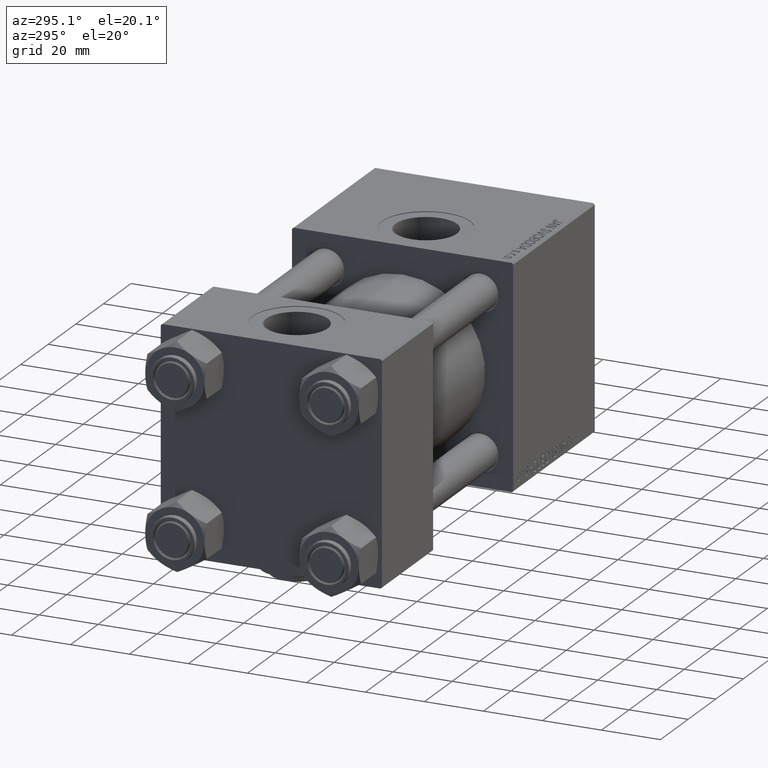
[diagram: clean part render]
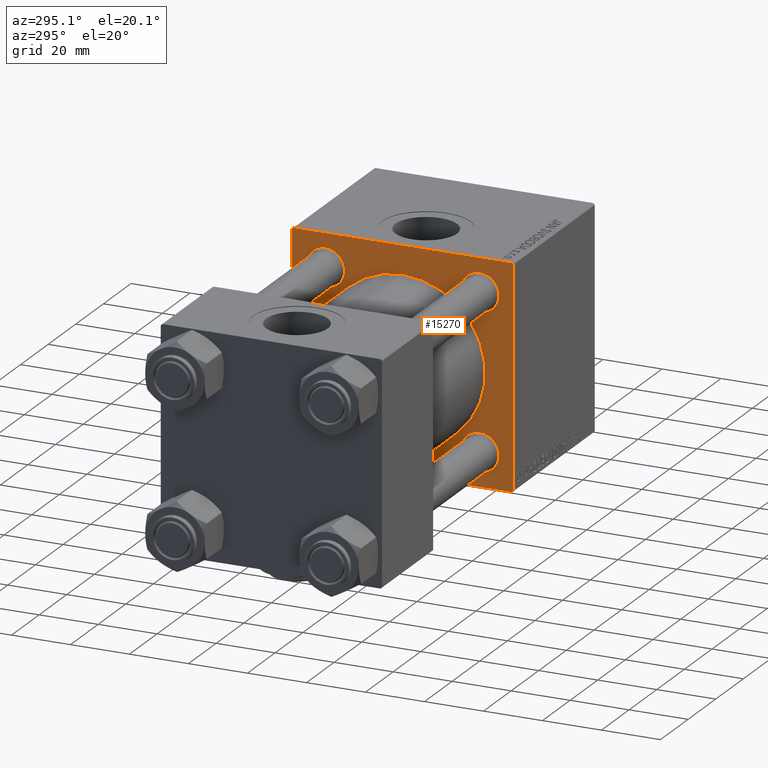
[diagram: same view with one face highlighted and labeled with its STEP entity id]
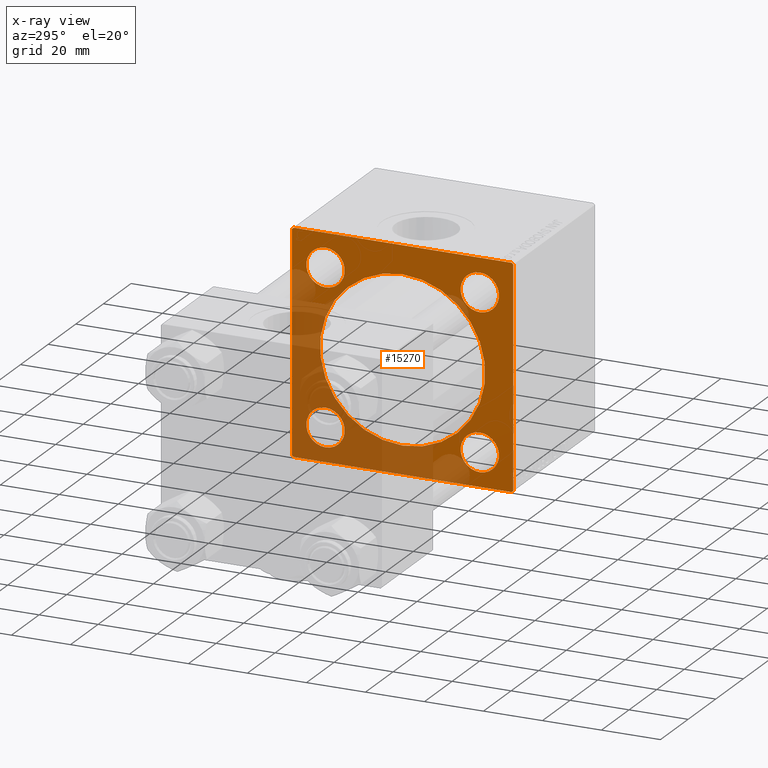
[diagram: x-ray of the same camera — body ghosted, the highlighted face saturated]
A machine part, auxiliary view. The second image highlights one B-rep face of the part: STEP entity #15270.
The next image is the same camera in x-ray: the body ghosted, the highlighted face saturated — about 42% of this face is hidden behind the body in this view.
In plain terms, the highlighted planar face has unit normal (-1, 0, 0).
Its self-contained STEP definition (entity closure, byte-faithful):
#158 = ORIENTED_EDGE ( 'NONE', *, *, #1476, .T. ) ;
#955 = EDGE_LOOP ( 'NONE', ( #39947, #24723 ) ) ;
#993 = EDGE_CURVE ( 'NONE', #10819, #49807, #37631, .T. ) ;
#1080 = ORIENTED_EDGE ( 'NONE', *, *, #26488, .T. ) ;
#1476 = EDGE_CURVE ( 'NONE', #27833, #14396, #23442, .T. ) ;
#1899 = CARTESIAN_POINT ( 'NONE',  ( 95.00000000000000000, 37.50000000000000000, 37.49999999999999289 ) ) ;
#1923 = EDGE_LOOP ( 'NONE', ( #1080, #46594 ) ) ;
#2020 = CARTESIAN_POINT ( 'NONE',  ( 95.00000000000000000, -37.50000000000000000, 36.99999999999995026 ) ) ;
#2520 = CARTESIAN_POINT ( 'NONE',  ( 95.00000000000000000, 37.50000000000000000, 36.99999999999999289 ) ) ;
#3603 = DIRECTION ( 'NONE',  ( 0.000000000000000000, 0.000000000000000000, 1.000000000000000000 ) ) ;
#3615 = CARTESIAN_POINT ( 'NONE',  ( 95.00000000000000000, -2.602085213965210642E-15, 0.000000000000000000 ) ) ;
#3672 = DIRECTION ( 'NONE',  ( -1.000000000000000000, -0.000000000000000000, 0.000000000000000000 ) ) ;
#3753 = DIRECTION ( 'NONE',  ( 0.000000000000000000, 0.000000000000000000, 1.000000000000000000 ) ) ;
#3996 = DIRECTION ( 'NONE',  ( 0.000000000000000000, 0.000000000000000000, 1.000000000000000000 ) ) ;
#4202 = CARTESIAN_POINT ( 'NONE',  ( 95.00000000000000000, -26.14999999999999147, -26.15000000000000924 ) ) ;
#4747 = CARTESIAN_POINT ( 'NONE',  ( 95.00000000000000000, -37.24999999999896261, -37.25000000000103029 ) ) ;
#4999 = CARTESIAN_POINT ( 'NONE',  ( 95.00000000000000000, -37.50000000000000711, -37.00000000000000711 ) ) ;
#5108 = CARTESIAN_POINT ( 'NONE',  ( 95.00000000000000000, 26.14999999999999858, -19.64999999999998792 ) ) ;
#5598 = ORIENTED_EDGE ( 'NONE', *, *, #41177, .T. ) ;
#5779 = AXIS2_PLACEMENT_3D ( 'NONE', #12547, #23901, #40000 ) ;
#6357 = CARTESIAN_POINT ( 'NONE',  ( 95.00000000000000000, 37.25000000000000000, 37.25000000000000000 ) ) ;
#6406 = CARTESIAN_POINT ( 'NONE',  ( 95.00000000000000000, 26.14999999999999858, 19.64999999999999147 ) ) ;
#6564 = CIRCLE ( 'NONE', #41185, 6.500000000000015987 ) ;
#6979 = VERTEX_POINT ( 'NONE', #5108 ) ;
#7645 = EDGE_LOOP ( 'NONE', ( #158, #47199, #16090, #38545, #22020, #35501, #21734, #40513 ) ) ;
#7699 = DIRECTION ( 'NONE',  ( 1.000000000000000000, 0.000000000000000000, 0.000000000000000000 ) ) ;
#8036 = EDGE_CURVE ( 'NONE', #14396, #13953, #52023, .T. ) ;
#8110 = CARTESIAN_POINT ( 'NONE',  ( 95.00000000000000000, -26.14999999999999147, 19.64999999999999147 ) ) ;
#9296 = AXIS2_PLACEMENT_3D ( 'NONE', #3615, #24220, #19728 ) ;
#9464 = LINE ( 'NONE', #45385, #45126 ) ;
#9507 = EDGE_CURVE ( 'NONE', #49807, #10819, #6564, .T. ) ;
#9729 = CARTESIAN_POINT ( 'NONE',  ( 95.00000000000000000, -36.99999999999997158, 37.49999999999997868 ) ) ;
#9863 = CARTESIAN_POINT ( 'NONE',  ( 95.00000000000000000, -26.14999999999999147, 32.65000000000003411 ) ) ;
#10081 = LINE ( 'NONE', #1899, #12127 ) ;
#10105 = EDGE_LOOP ( 'NONE', ( #5598, #37010 ) ) ;
#10819 = VERTEX_POINT ( 'NONE', #9863 ) ;
#10870 = DIRECTION ( 'NONE',  ( 1.000000000000000000, 0.000000000000000000, -0.000000000000000000 ) ) ;
#11005 = VERTEX_POINT ( 'NONE', #6406 ) ;
#11089 = EDGE_CURVE ( 'NONE', #34483, #32705, #52219, .T. ) ;
#11902 = CIRCLE ( 'NONE', #48185, 6.500000000000008882 ) ;
#12127 = VECTOR ( 'NONE', #34112, 1000.000000000000000 ) ;
#12547 = CARTESIAN_POINT ( 'NONE',  ( 95.00000000000000000, 26.14999999999999858, -26.15000000000000213 ) ) ;
#12626 = EDGE_CURVE ( 'NONE', #36338, #19239, #48071, .T. ) ;
#12749 = ORIENTED_EDGE ( 'NONE', *, *, #12626, .T. ) ;
#13271 = EDGE_CURVE ( 'NONE', #21223, #27290, #25459, .T. ) ;
#13504 = VERTEX_POINT ( 'NONE', #45729 ) ;
#13547 = ORIENTED_EDGE ( 'NONE', *, *, #993, .T. ) ;
#13669 = CARTESIAN_POINT ( 'NONE',  ( 95.00000000000000000, 37.50000000000000000, -36.99999999999999289 ) ) ;
#13953 = VERTEX_POINT ( 'NONE', #4999 ) ;
#14324 = DIRECTION ( 'NONE',  ( 0.000000000000000000, -1.000000000000000000, -1.850371707708594316E-16 ) ) ;
#14396 = VERTEX_POINT ( 'NONE', #42027 ) ;
#15270 = ADVANCED_FACE ( 'NONE', ( #26251, #18312, #35896, #43567, #15318, #31411 ), #34416, .T. ) ;
#15318 = FACE_BOUND ( 'NONE', #16344, .T. ) ;
#15565 = DIRECTION ( 'NONE',  ( 1.000000000000000000, 0.000000000000000000, -0.000000000000000000 ) ) ;
#15569 = EDGE_CURVE ( 'NONE', #30453, #11005, #11902, .T. ) ;
#16090 = ORIENTED_EDGE ( 'NONE', *, *, #37147, .F. ) ;
#16344 = EDGE_LOOP ( 'NONE', ( #12749, #22378 ) ) ;
#16618 = CARTESIAN_POINT ( 'NONE',  ( 95.00000000000000000, 26.14999999999999858, 32.65000000000001990 ) ) ;
#16828 = CARTESIAN_POINT ( 'NONE',  ( 95.00000000000000000, -26.14999999999999147, 26.15000000000000924 ) ) ;
#16870 = DIRECTION ( 'NONE',  ( 0.000000000000000000, -9.251858538542972814E-17, -1.000000000000000000 ) ) ;
#17278 = EDGE_CURVE ( 'NONE', #40170, #27833, #49999, .T. ) ;
#17530 = CARTESIAN_POINT ( 'NONE',  ( 95.00000000000000000, -37.24999999999997158, 37.24999999999997158 ) ) ;
#17781 = CARTESIAN_POINT ( 'NONE',  ( 95.00000000000000000, 37.25000000000026290, -37.24999999999974420 ) ) ;
#17829 = DIRECTION ( 'NONE',  ( 0.000000000000000000, 0.000000000000000000, 1.000000000000000000 ) ) ;
#18243 = AXIS2_PLACEMENT_3D ( 'NONE', #16828, #39789, #3603 ) ;
#18312 = FACE_BOUND ( 'NONE', #955, .T. ) ;
#18913 = DIRECTION ( 'NONE',  ( 1.000000000000000000, 0.000000000000000000, -0.000000000000000000 ) ) ;
#18914 = CIRCLE ( 'NONE', #32411, 6.500000000000015987 ) ;
#19239 = VERTEX_POINT ( 'NONE', #41611 ) ;
#19659 = AXIS2_PLACEMENT_3D ( 'NONE', #23302, #7699, #52081 ) ;
#19728 = DIRECTION ( 'NONE',  ( 0.000000000000000000, 0.000000000000000000, -1.000000000000000000 ) ) ;
#19829 = DIRECTION ( 'NONE',  ( 0.000000000000000000, 0.000000000000000000, 1.000000000000000000 ) ) ;
#20071 = CIRCLE ( 'NONE', #5779, 6.500000000000015987 ) ;
#20148 = EDGE_CURVE ( 'NONE', #27759, #27290, #33626, .T. ) ;
#20283 = EDGE_CURVE ( 'NONE', #11005, #30453, #51685, .T. ) ;
#21223 = VERTEX_POINT ( 'NONE', #2020 ) ;
#21734 = ORIENTED_EDGE ( 'NONE', *, *, #21861, .T. ) ;
#21861 = EDGE_CURVE ( 'NONE', #44997, #40170, #10081, .T. ) ;
#22020 = ORIENTED_EDGE ( 'NONE', *, *, #20148, .F. ) ;
#22277 = DIRECTION ( 'NONE',  ( 0.000000000000000000, 0.000000000000000000, 1.000000000000000000 ) ) ;
#22378 = ORIENTED_EDGE ( 'NONE', *, *, #23988, .T. ) ;
#22472 = LINE ( 'NONE', #6357, #34989 ) ;
#22767 = CARTESIAN_POINT ( 'NONE',  ( 95.00000000000000000, 26.14999999999999858, 26.15000000000000213 ) ) ;
#23302 = CARTESIAN_POINT ( 'NONE',  ( 95.00000000000000000, -2.602085213965210642E-15, 0.000000000000000000 ) ) ;
#23442 = LINE ( 'NONE', #39541, #41051 ) ;
#23901 = DIRECTION ( 'NONE',  ( 1.000000000000000000, 0.000000000000000000, -0.000000000000000000 ) ) ;
#23988 = EDGE_CURVE ( 'NONE', #19239, #36338, #35688, .T. ) ;
#24073 = CARTESIAN_POINT ( 'NONE',  ( 95.00000000000000000, -26.14999999999999147, -26.15000000000000924 ) ) ;
#24184 = EDGE_LOOP ( 'NONE', ( #13547, #48345 ) ) ;
#24220 = DIRECTION ( 'NONE',  ( 1.000000000000000000, 0.000000000000000000, 0.000000000000000000 ) ) ;
#24549 = DIRECTION ( 'NONE',  ( 0.000000000000000000, 0.000000000000000000, 1.000000000000000000 ) ) ;
#24723 = ORIENTED_EDGE ( 'NONE', *, *, #20283, .T. ) ;
#25459 = LINE ( 'NONE', #17530, #29575 ) ;
#25494 = CARTESIAN_POINT ( 'NONE',  ( 95.00000000000000000, -26.14999999999999147, 26.15000000000000924 ) ) ;
#26251 = FACE_BOUND ( 'NONE', #24184, .T. ) ;
#26300 = VECTOR ( 'NONE', #33881, 999.9999999999998863 ) ;
#26488 = EDGE_CURVE ( 'NONE', #6979, #13504, #18914, .T. ) ;
#27290 = VERTEX_POINT ( 'NONE', #9729 ) ;
#27759 = VERTEX_POINT ( 'NONE', #41892 ) ;
#27798 = CARTESIAN_POINT ( 'NONE',  ( 95.00000000000000000, 26.14999999999999858, -26.15000000000000213 ) ) ;
#27833 = VERTEX_POINT ( 'NONE', #38682 ) ;
#29575 = VECTOR ( 'NONE', #41561, 1000.000000000000114 ) ;
#30453 = VERTEX_POINT ( 'NONE', #16618 ) ;
#31411 = FACE_OUTER_BOUND ( 'NONE', #7645, .T. ) ;
#31867 = DIRECTION ( 'NONE',  ( 0.000000000000000000, -1.000000000000000000, 0.000000000000000000 ) ) ;
#32411 = AXIS2_PLACEMENT_3D ( 'NONE', #27798, #39936, #3753 ) ;
#32705 = VERTEX_POINT ( 'NONE', #46513 ) ;
#33626 = LINE ( 'NONE', #49744, #50856 ) ;
#33881 = DIRECTION ( 'NONE',  ( -0.000000000000000000, -0.7071067811865425767, -0.7071067811865525687 ) ) ;
#34112 = DIRECTION ( 'NONE',  ( 0.000000000000000000, 0.000000000000000000, -1.000000000000000000 ) ) ;
#34416 = PLANE ( 'NONE',  #42248 ) ;
#34483 = VERTEX_POINT ( 'NONE', #35651 ) ;
#34989 = VECTOR ( 'NONE', #45748, 1000.000000000000114 ) ;
#35105 = EDGE_CURVE ( 'NONE', #13504, #6979, #20071, .T. ) ;
#35501 = ORIENTED_EDGE ( 'NONE', *, *, #38939, .T. ) ;
#35651 = CARTESIAN_POINT ( 'NONE',  ( 95.00000000000000000, -26.14999999999999147, -32.65000000000002700 ) ) ;
#35688 = CIRCLE ( 'NONE', #19659, 28.00000000000000000 ) ;
#35896 = FACE_BOUND ( 'NONE', #1923, .T. ) ;
#36186 = AXIS2_PLACEMENT_3D ( 'NONE', #24073, #40181, #3996 ) ;
#36338 = VERTEX_POINT ( 'NONE', #45046 ) ;
#36974 = DIRECTION ( 'NONE',  ( 0.000000000000000000, -0.7071067811865671127, 0.7071067811865279218 ) ) ;
#37010 = ORIENTED_EDGE ( 'NONE', *, *, #11089, .T. ) ;
#37147 = EDGE_CURVE ( 'NONE', #21223, #13953, #9464, .T. ) ;
#37631 = CIRCLE ( 'NONE', #18243, 6.500000000000015987 ) ;
#38545 = ORIENTED_EDGE ( 'NONE', *, *, #13271, .T. ) ;
#38682 = CARTESIAN_POINT ( 'NONE',  ( 95.00000000000000000, 37.00000000000000000, -37.50000000000000000 ) ) ;
#38939 = EDGE_CURVE ( 'NONE', #27759, #44997, #22472, .T. ) ;
#39541 = CARTESIAN_POINT ( 'NONE',  ( 95.00000000000000000, 37.50000000000000000, -37.50000000000000000 ) ) ;
#39789 = DIRECTION ( 'NONE',  ( 1.000000000000000000, 0.000000000000000000, -0.000000000000000000 ) ) ;
#39936 = DIRECTION ( 'NONE',  ( 1.000000000000000000, 0.000000000000000000, -0.000000000000000000 ) ) ;
#39947 = ORIENTED_EDGE ( 'NONE', *, *, #15569, .T. ) ;
#40000 = DIRECTION ( 'NONE',  ( 0.000000000000000000, 0.000000000000000000, 1.000000000000000000 ) ) ;
#40170 = VERTEX_POINT ( 'NONE', #13669 ) ;
#40181 = DIRECTION ( 'NONE',  ( 1.000000000000000000, 0.000000000000000000, -0.000000000000000000 ) ) ;
#40513 = ORIENTED_EDGE ( 'NONE', *, *, #17278, .T. ) ;
#41051 = VECTOR ( 'NONE', #31867, 1000.000000000000000 ) ;
#41070 = DIRECTION ( 'NONE',  ( 1.000000000000000000, 0.000000000000000000, -0.000000000000000000 ) ) ;
#41177 = EDGE_CURVE ( 'NONE', #32705, #34483, #49498, .T. ) ;
#41185 = AXIS2_PLACEMENT_3D ( 'NONE', #25494, #41070, #17829 ) ;
#41561 = DIRECTION ( 'NONE',  ( -0.000000000000000000, 0.7071067811865474617, 0.7071067811865474617 ) ) ;
#41611 = CARTESIAN_POINT ( 'NONE',  ( 95.00000000000000000, 8.269258236473776482E-16, -28.00000000000000000 ) ) ;
#41892 = CARTESIAN_POINT ( 'NONE',  ( 95.00000000000000000, 37.00000000000000000, 37.49999999999999289 ) ) ;
#42027 = CARTESIAN_POINT ( 'NONE',  ( 95.00000000000000000, -36.99999999999998579, -37.50000000000000000 ) ) ;
#42072 = VECTOR ( 'NONE', #36974, 1000.000000000000000 ) ;
#42248 = AXIS2_PLACEMENT_3D ( 'NONE', #42351, #3672, #22277 ) ;
#42351 = CARTESIAN_POINT ( 'NONE',  ( 95.00000000000000000, 0.000000000000000000, 0.000000000000000000 ) ) ;
#43273 = AXIS2_PLACEMENT_3D ( 'NONE', #22767, #10870, #19829 ) ;
#43567 = FACE_BOUND ( 'NONE', #10105, .T. ) ;
#44389 = AXIS2_PLACEMENT_3D ( 'NONE', #4202, #15565, #24549 ) ;
#44997 = VERTEX_POINT ( 'NONE', #2520 ) ;
#45046 = CARTESIAN_POINT ( 'NONE',  ( 95.00000000000000000, -2.602085213965210642E-15, 28.00000000000000000 ) ) ;
#45126 = VECTOR ( 'NONE', #16870, 1000.000000000000000 ) ;
#45385 = CARTESIAN_POINT ( 'NONE',  ( 95.00000000000000000, -37.50000000000000000, 37.49999999999997868 ) ) ;
#45729 = CARTESIAN_POINT ( 'NONE',  ( 95.00000000000000000, 26.14999999999999858, -32.65000000000001990 ) ) ;
#45748 = DIRECTION ( 'NONE',  ( 0.000000000000000000, 0.7071067811865474617, -0.7071067811865474617 ) ) ;
#46513 = CARTESIAN_POINT ( 'NONE',  ( 95.00000000000000000, -26.14999999999999147, -19.64999999999999503 ) ) ;
#46594 = ORIENTED_EDGE ( 'NONE', *, *, #35105, .T. ) ;
#47183 = DIRECTION ( 'NONE',  ( 0.000000000000000000, 0.000000000000000000, 1.000000000000000000 ) ) ;
#47199 = ORIENTED_EDGE ( 'NONE', *, *, #8036, .T. ) ;
#48071 = CIRCLE ( 'NONE', #9296, 28.00000000000000000 ) ;
#48185 = AXIS2_PLACEMENT_3D ( 'NONE', #50879, #18913, #47183 ) ;
#48345 = ORIENTED_EDGE ( 'NONE', *, *, #9507, .T. ) ;
#49498 = CIRCLE ( 'NONE', #44389, 6.500000000000015987 ) ;
#49744 = CARTESIAN_POINT ( 'NONE',  ( 95.00000000000000000, 37.50000000000000000, 37.49999999999999289 ) ) ;
#49807 = VERTEX_POINT ( 'NONE', #8110 ) ;
#49999 = LINE ( 'NONE', #17781, #26300 ) ;
#50856 = VECTOR ( 'NONE', #14324, 1000.000000000000000 ) ;
#50879 = CARTESIAN_POINT ( 'NONE',  ( 95.00000000000000000, 26.14999999999999858, 26.15000000000000213 ) ) ;
#51685 = CIRCLE ( 'NONE', #43273, 6.500000000000008882 ) ;
#52023 = LINE ( 'NONE', #4747, #42072 ) ;
#52081 = DIRECTION ( 'NONE',  ( 0.000000000000000000, 0.000000000000000000, -1.000000000000000000 ) ) ;
#52219 = CIRCLE ( 'NONE', #36186, 6.500000000000015987 ) ;